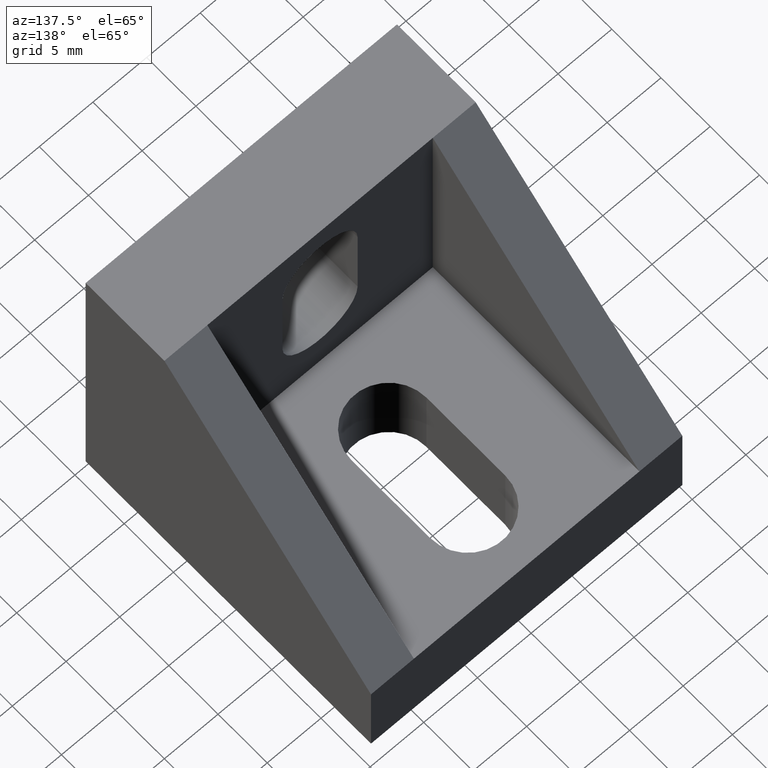
[diagram: clean part render]
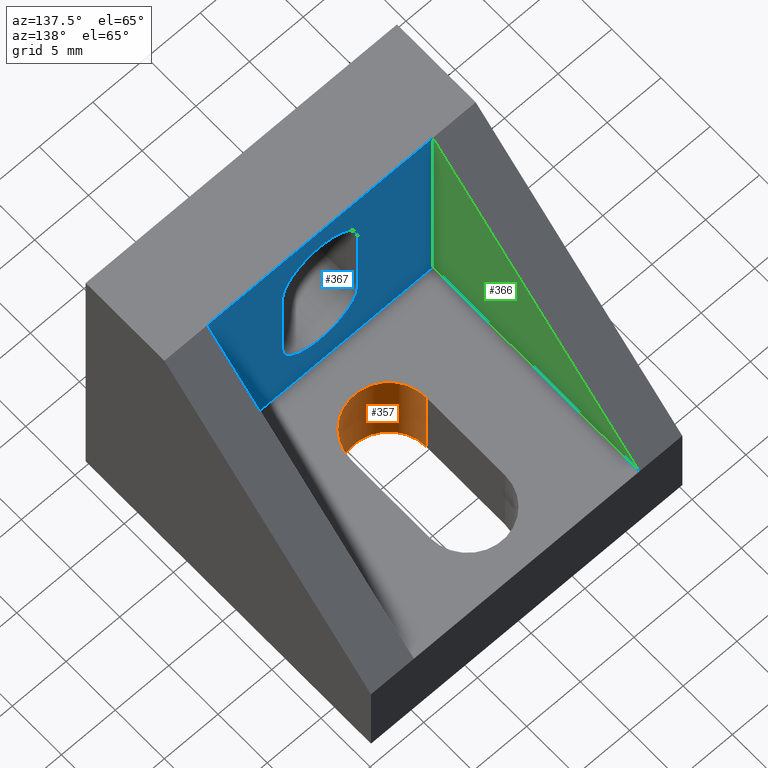
[diagram: same view with three faces highlighted in distinct colors, each labeled with its STEP entity id]
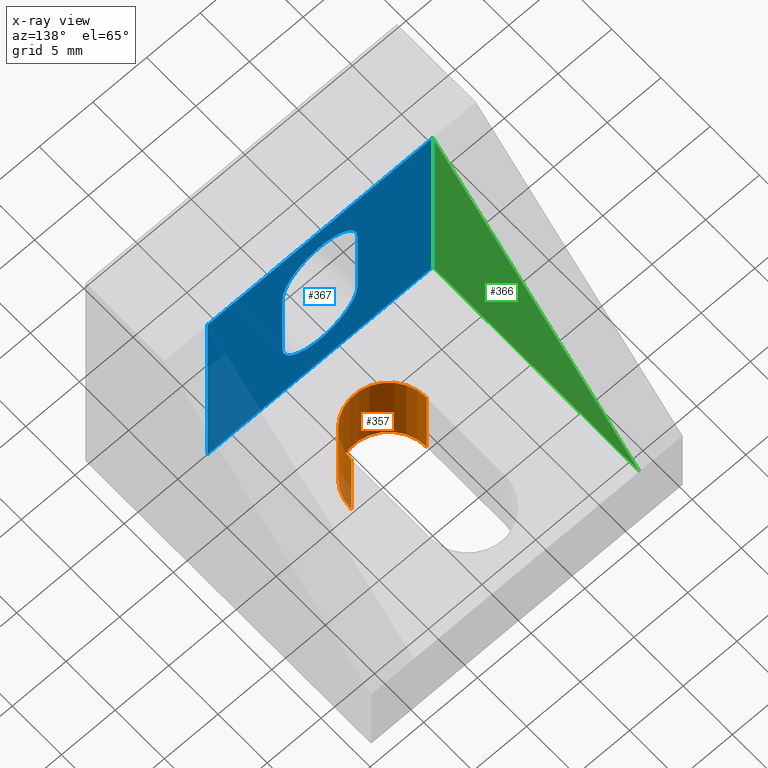
[diagram: x-ray of the same camera — body ghosted, the three highlighted faces saturated]
A machine part, auxiliary view with three faces highlighted in distinct colors.
The next image is the same camera in x-ray (body ghosted, the three faces saturated) — at least one of them is partly hidden behind the body in this view.
Their STEP definitions:

[orange] entity #357 — the highlighted cylindrical surface (partial cylindrical patch) has radius 3.5 mm, axis along (0, -0, 1).
#35=FACE_OUTER_BOUND('',#55,.T.);
#55=EDGE_LOOP('',(#253,#254,#255,#256));
#79=LINE('',#513,#121);
#80=LINE('',#516,#122);
#121=VECTOR('',#413,8.);
#122=VECTOR('',#416,8.);
#163=CIRCLE('',#380,3.5);
#164=CIRCLE('',#381,3.5);
#171=VERTEX_POINT('',#509);
#172=VERTEX_POINT('',#510);
#173=VERTEX_POINT('',#512);
#174=VERTEX_POINT('',#514);
#203=EDGE_CURVE('',#171,#172,#163,.T.);
#204=EDGE_CURVE('',#173,#171,#79,.T.);
#205=EDGE_CURVE('',#174,#173,#164,.T.);
#206=EDGE_CURVE('',#174,#172,#80,.T.);
#253=ORIENTED_EDGE('',*,*,#203,.F.);
#254=ORIENTED_EDGE('',*,*,#204,.F.);
#255=ORIENTED_EDGE('',*,*,#205,.F.);
#256=ORIENTED_EDGE('',*,*,#206,.T.);
#353=CYLINDRICAL_SURFACE('',#379,3.5);
#357=ADVANCED_FACE('',(#35),#353,.F.);
#379=AXIS2_PLACEMENT_3D('',#508,#409,#410);
#380=AXIS2_PLACEMENT_3D('',#511,#411,#412);
#381=AXIS2_PLACEMENT_3D('',#515,#414,#415);
#409=DIRECTION('center_axis',(0.,-5.1044736764375E-17,1.));
#410=DIRECTION('ref_axis',(1.,6.34413156928661E-16,3.23834525952796E-32));
#411=DIRECTION('center_axis',(0.,0.,-1.));
#412=DIRECTION('ref_axis',(1.,6.34413156928661E-16,3.23834525952796E-32));
#413=DIRECTION('',(0.,-5.1044736764375E-17,1.));
#414=DIRECTION('center_axis',(0.,-6.12323399573676E-17,1.));
#415=DIRECTION('ref_axis',(1.,6.34413156928661E-16,3.23834525952796E-32));
#416=DIRECTION('',(0.,-5.1044736764375E-17,1.));
#508=CARTESIAN_POINT('Origin',(14.5,15.,9.18485099360515E-16));
#509=CARTESIAN_POINT('',(18.,15.,8.));
#510=CARTESIAN_POINT('',(11.,15.,8.));
#511=CARTESIAN_POINT('Origin',(14.5,15.,8.));
#512=CARTESIAN_POINT('',(18.,15.,9.18485099360515E-16));
#513=CARTESIAN_POINT('',(18.,15.,9.18485099360515E-16));
#514=CARTESIAN_POINT('',(11.,15.,9.18485099360515E-16));
#515=CARTESIAN_POINT('Origin',(14.5,15.,7.65671051465625E-16));
#516=CARTESIAN_POINT('',(11.,15.,9.18485099360515E-16));

[blue] entity #367 — the highlighted planar face has unit normal (0, -1, 0).
#15=FACE_BOUND('',#66,.T.);
#25=PLANE('',#397);
#45=FACE_OUTER_BOUND('',#65,.T.);
#65=EDGE_LOOP('',(#291,#292,#293,#294));
#66=EDGE_LOOP('',(#295,#296,#297,#298));
#89=LINE('',#543,#131);
#93=LINE('',#554,#135);
#97=LINE('',#562,#139);
#99=LINE('',#568,#141);
#101=LINE('',#571,#143);
#102=LINE('',#572,#144);
#131=VECTOR('',#443,7.99999999999999);
#135=VECTOR('',#455,8.);
#139=VECTOR('',#461,21.);
#141=VECTOR('',#465,21.);
#143=VECTOR('',#469,21.);
#144=VECTOR('',#470,21.);
#167=CIRCLE('',#388,3.5);
#169=CIRCLE('',#392,3.5);
#179=VERTEX_POINT('',#533);
#180=VERTEX_POINT('',#534);
#183=VERTEX_POINT('',#542);
#185=VERTEX_POINT('',#548);
#188=VERTEX_POINT('',#558);
#189=VERTEX_POINT('',#560);
#190=VERTEX_POINT('',#564);
#192=VERTEX_POINT('',#567);
#215=EDGE_CURVE('',#179,#180,#167,.T.);
#219=EDGE_CURVE('',#180,#183,#89,.T.);
#222=EDGE_CURVE('',#183,#185,#169,.T.);
#225=EDGE_CURVE('',#185,#179,#93,.T.);
#229=EDGE_CURVE('',#188,#189,#97,.T.);
#231=EDGE_CURVE('',#190,#192,#99,.T.);
#233=EDGE_CURVE('',#190,#188,#101,.T.);
#234=EDGE_CURVE('',#189,#192,#102,.T.);
#291=ORIENTED_EDGE('',*,*,#233,.T.);
#292=ORIENTED_EDGE('',*,*,#229,.T.);
#293=ORIENTED_EDGE('',*,*,#234,.T.);
#294=ORIENTED_EDGE('',*,*,#231,.F.);
#295=ORIENTED_EDGE('',*,*,#222,.T.);
#296=ORIENTED_EDGE('',*,*,#225,.T.);
#297=ORIENTED_EDGE('',*,*,#215,.T.);
#298=ORIENTED_EDGE('',*,*,#219,.T.);
#367=ADVANCED_FACE('',(#45,#15),#25,.F.);
#388=AXIS2_PLACEMENT_3D('',#535,#435,#436);
#392=AXIS2_PLACEMENT_3D('',#549,#448,#449);
#397=AXIS2_PLACEMENT_3D('',#570,#467,#468);
#435=DIRECTION('center_axis',(1.05735526154777E-16,-1.,0.));
#436=DIRECTION('ref_axis',(-1.,0.,-1.26882631385732E-15));
#443=DIRECTION('',(-2.77555756156289E-16,-2.93475039144722E-32,1.));
#448=DIRECTION('center_axis',(1.05735526154777E-16,-1.,0.));
#449=DIRECTION('ref_axis',(1.,0.,0.));
#455=DIRECTION('',(2.77555756156289E-16,2.93475039144721E-32,-1.));
#461=DIRECTION('',(0.,0.,-1.));
#465=DIRECTION('',(0.,0.,-1.));
#467=DIRECTION('center_axis',(1.05735526154777E-16,-1.,0.));
#468=DIRECTION('ref_axis',(-1.,-1.77635683940025E-16,0.));
#469=DIRECTION('',(1.,0.,0.));
#470=DIRECTION('',(-1.,-1.05735526154777E-16,0.));
#533=CARTESIAN_POINT('',(11.,8.,15.));
#534=CARTESIAN_POINT('',(18.,8.,15.));
#535=CARTESIAN_POINT('Origin',(14.5,8.,15.));
#542=CARTESIAN_POINT('',(18.,8.,23.));
#543=CARTESIAN_POINT('',(18.,8.,26.));
#548=CARTESIAN_POINT('',(11.,8.,23.));
#549=CARTESIAN_POINT('Origin',(14.5,8.,23.));
#554=CARTESIAN_POINT('',(11.,8.,22.));
#558=CARTESIAN_POINT('',(25.,8.,29.));
#560=CARTESIAN_POINT('',(25.,8.,8.));
#562=CARTESIAN_POINT('',(25.,8.,29.));
#564=CARTESIAN_POINT('',(4.,8.,29.));
#567=CARTESIAN_POINT('',(4.,8.,8.));
#568=CARTESIAN_POINT('',(4.,8.,29.));
#570=CARTESIAN_POINT('Origin',(25.,8.,29.));
#571=CARTESIAN_POINT('',(0.,8.,29.));
#572=CARTESIAN_POINT('',(25.,8.,8.));

[green] entity #366 — the highlighted planar face has unit normal (-1, -0, 0).
#24=PLANE('',#396);
#44=FACE_OUTER_BOUND('',#64,.T.);
#64=EDGE_LOOP('',(#288,#289,#290));
#98=LINE('',#566,#140);
#99=LINE('',#568,#141);
#100=LINE('',#569,#142);
#140=VECTOR('',#464,29.698484809835);
#141=VECTOR('',#465,21.);
#142=VECTOR('',#466,21.);
#190=VERTEX_POINT('',#564);
#191=VERTEX_POINT('',#565);
#192=VERTEX_POINT('',#567);
#230=EDGE_CURVE('',#190,#191,#98,.T.);
#231=EDGE_CURVE('',#190,#192,#99,.T.);
#232=EDGE_CURVE('',#192,#191,#100,.T.);
#288=ORIENTED_EDGE('',*,*,#230,.F.);
#289=ORIENTED_EDGE('',*,*,#231,.T.);
#290=ORIENTED_EDGE('',*,*,#232,.T.);
#366=ADVANCED_FACE('',(#44),#24,.F.);
#396=AXIS2_PLACEMENT_3D('',#563,#462,#463);
#462=DIRECTION('center_axis',(-1.,-1.05735526154777E-16,0.));
#463=DIRECTION('ref_axis',(-8.88178419700125E-17,1.,0.));
#464=DIRECTION('',(-7.47663075563702E-17,0.707106781186547,-0.707106781186547));
#465=DIRECTION('',(0.,0.,-1.));
#466=DIRECTION('',(-1.05735526154777E-16,1.,0.));
#563=CARTESIAN_POINT('Origin',(4.,8.,29.));
#564=CARTESIAN_POINT('',(4.,8.,29.));
#565=CARTESIAN_POINT('',(4.,29.,8.));
#566=CARTESIAN_POINT('',(4.,18.5,18.5));
#567=CARTESIAN_POINT('',(4.,8.,8.));
#568=CARTESIAN_POINT('',(4.,8.,29.));
#569=CARTESIAN_POINT('',(4.,8.,8.));